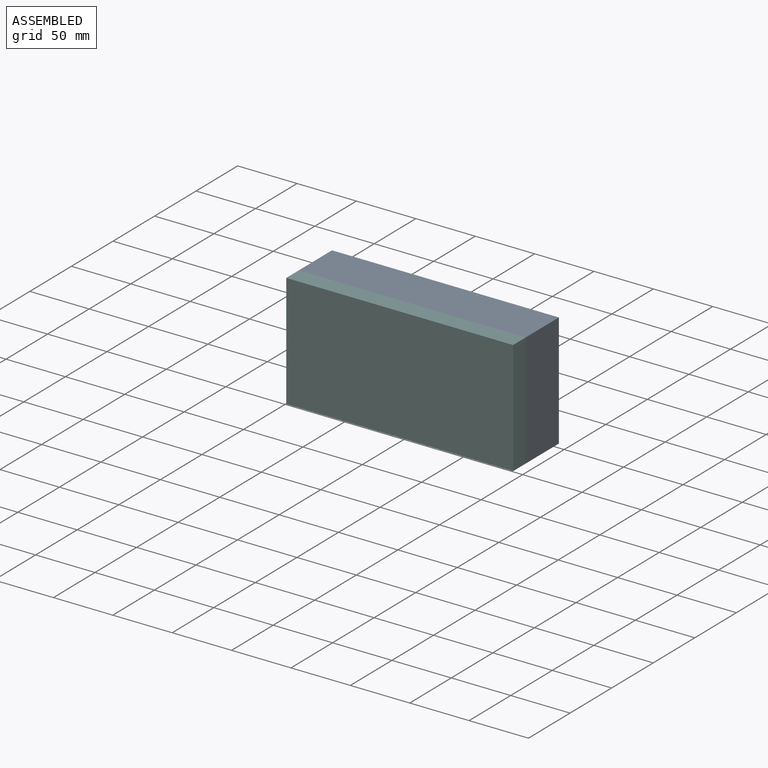
[diagram: assembled view]
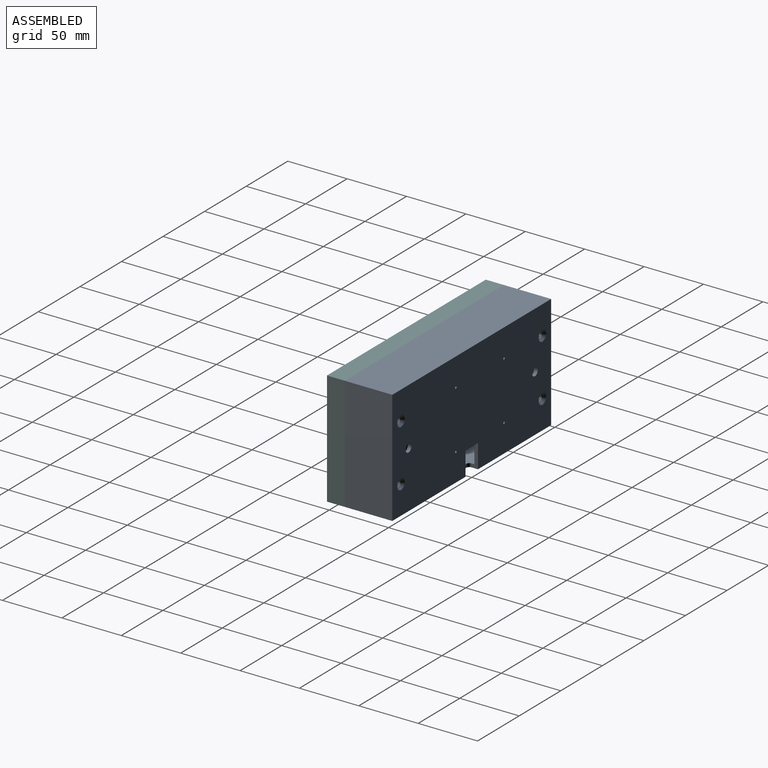
[diagram: assembled view, second angle]
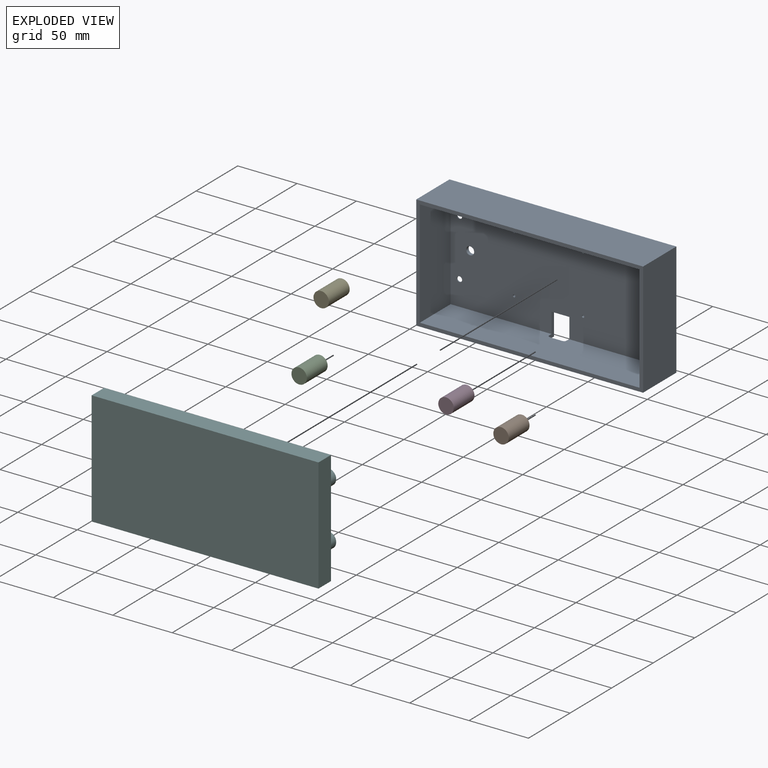
[diagram: exploded view]
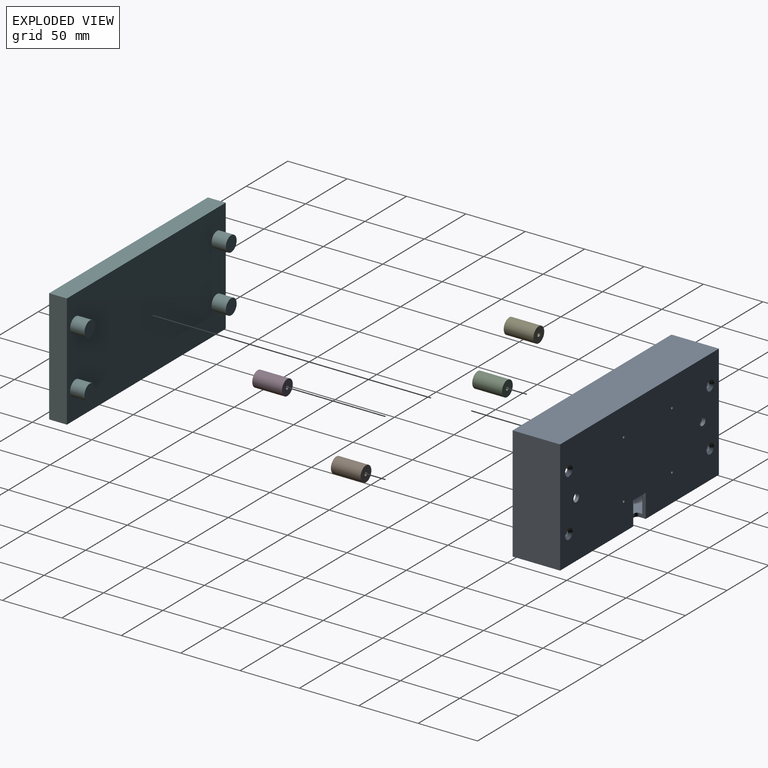
[diagram: exploded view, second angle]
ASSEMBLY  parts=6 mates=5
PART A: 31 faces, bbox 191x40x96 mm
  f0: plane 191x40mm, normal (0,0,-1), area 7522.7mm2, adj f1,f5,f6,f7,f19,f20,f21,f29
  f1: plane 191x96mm, normal (0,1,0), area 17698.9mm2, adj f0,f4,f5,f6,f12,f14,f16,f18
  f2: plane 185x37mm, normal (0,0,1), area 6772.7mm2, adj f3,f7,f9,f10,f19,f20,f21,f29
  f3: plane 185x90mm, normal (0,-1,0), area 16249.3mm2, adj f2,f8,f9,f10,f11,f13,f15,f17
  f4: plane 191x40mm, normal (0,0,1), area 7640mm2, adj f1,f5,f6,f7
  f5: plane 96x40mm, normal (1,0,0), area 3840mm2, adj f0,f1,f4,f7
  f6: plane 96x40mm, normal (-1,0,0), area 3840mm2, adj f0,f1,f4,f7
  f7: plane 191x96mm, normal (0,-1,0), area 1686mm2, adj f0,f2,f4,f5,f6,f8,f9,f10
  f8: plane 185x37mm, normal (0,0,-1), area 6845mm2, adj f3,f7,f9,f10
  f9: plane 90x37mm, normal (1,0,0), area 3330mm2, adj f2,f3,f7,f8
  f10: plane 90x37mm, normal (-1,0,0), area 3330mm2, adj f2,f3,f7,f8
  f11: cylinder r=2.2mm len=4.4mm, axis (0,1,0), area 10mm2, adj f3,f12
  f12: cone r=2.2mm half-angle=45deg, axis (0,1,0), area 67.7mm2, adj f1,f11
  f13: cylinder r=2.2mm len=4.4mm, axis (0,1,0), area 10mm2, adj f3,f14
  f14: cone r=2.2mm half-angle=45deg, axis (0,1,0), area 67.7mm2, adj f1,f13
  f15: cylinder r=2.2mm len=4.4mm, axis (0,1,0), area 10mm2, adj f3,f16
  f16: cone r=2.2mm half-angle=45deg, axis (0,1,0), area 67.7mm2, adj f1,f15
  f17: cylinder r=2.2mm len=4.4mm, axis (0,1,0), area 10mm2, adj f3,f18
  f18: cone r=2.2mm half-angle=45deg, axis (0,1,0), area 67.7mm2, adj f1,f17
  f19: plane 10x3mm, normal (0,1,0), area 30mm2, adj f0,f2,f29,f30
  f20: plane 20x5.5mm, normal (-1,0,0), area 67.5mm2, adj f0,f1,f2,f3,f22,f30
  f21: plane 20x5.5mm, normal (1,0,0), area 67.5mm2, adj f0,f1,f2,f3,f22,f29
  f22: plane 15x3mm, normal (0,0,-1), area 45mm2, adj f1,f3,f20,f21
  f23: cylinder r=1.03mm len=3mm, axis (0,-1,0), area 19.3mm2, adj f1,f3
  f24: cylinder r=1.03mm len=3mm, axis (0,-1,0), area 19.3mm2, adj f1,f3
  f25: cylinder r=1.03mm len=3mm, axis (0,-1,0), area 19.3mm2, adj f1,f3
  f26: cylinder r=1.03mm len=3mm, axis (0,-1,0), area 19.3mm2, adj f1,f3
  f27: cylinder r=3.38mm len=6.76mm, axis (0,1,0), area 63.7mm2, adj f1,f3
  f28: cylinder r=3.38mm len=6.76mm, axis (0,1,0), area 63.7mm2, adj f1,f3
  f29: cylinder r=2.5mm len=3mm, axis (0,0,1), area 11.8mm2, adj f0,f2,f19,f21
  f30: cylinder r=2.5mm len=3mm, axis (0,0,-1), area 11.8mm2, adj f0,f2,f19,f20
PART B: 5 faces, bbox 13x25x13 mm
  f0: plane 13x13mm, normal (0,1,0), area 124.2mm2, adj f2,f4
  f1: plane 13x13mm, normal (0,-1,0), area 132.7mm2, adj f2
  f2: cylinder r=6.5mm len=25mm, axis (0,-1,0), area 1021mm2, adj f0,f1
  f3: cone r=0mm half-angle=59deg, axis (0,1,0), area 10mm2, adj f4
  f4: cylinder r=1.65mm len=14.1mm, axis (0,1,0), area 146.2mm2, adj f0,f3
PART C: same geometry as B
PART D: same geometry as B
PART E: same geometry as B
PART F: 14 faces, bbox 191x27x96 mm
  f0: plane 96x15mm, normal (1,0,0), area 1440mm2, adj f1,f3,f4,f5
  f1: plane 191x15mm, normal (0,0,1), area 2865mm2, adj f0,f2,f4,f5
  f2: plane 96x15mm, normal (-1,0,0), area 1440mm2, adj f1,f3,f4,f5
  f3: plane 191x15mm, normal (0,0,-1), area 2865mm2, adj f0,f2,f4,f5
  f4: plane 191x96mm, normal (0,-1,0), area 18336mm2, adj f0,f1,f2,f3
  f5: plane 191x96mm, normal (0,1,0), area 17805.1mm2, adj f0,f1,f2,f3,f6,f8,f10,f12
  f6: cylinder r=6.5mm len=13mm, axis (0,-1,0), area 490.1mm2, adj f5,f7
  f7: plane 13x13mm, normal (0,1,0), area 132.7mm2, adj f6
  f8: cylinder r=6.5mm len=13mm, axis (0,-1,0), area 490.1mm2, adj f5,f9
  f9: plane 13x13mm, normal (0,1,0), area 132.7mm2, adj f8
  f10: cylinder r=6.5mm len=13mm, axis (0,-1,0), area 490.1mm2, adj f5,f11
  f11: plane 13x13mm, normal (0,1,0), area 132.7mm2, adj f10
  f12: cylinder r=6.5mm len=13mm, axis (0,-1,0), area 490.1mm2, adj f5,f13
  f13: plane 13x13mm, normal (0,1,0), area 132.7mm2, adj f12
PLACE A t=(-0.01,-40,-0.64)mm
PLACE B t=(-0.01,-40,-48.64)mm
PLACE C t=(-170.01,-40,-48.64)mm
PLACE D t=(-0.01,-40,-0.64)mm
PLACE E t=(-170.01,-40,-0.64)mm
PLACE F t=(-0.01,-40,-0.64)mm
MATE fastened B.f2 <-> A.f13  axis (0,1,0) through (84.99,-3,-24.64)mm
MATE fastened C.f2 <-> A.f15  axis (0,1,0) through (-85.01,-3,-24.64)mm
MATE fastened E.f2 <-> A.f17  axis (0,1,0) through (-85.01,-3,23.36)mm
MATE fastened E.f2 <-> F.f12  axis (0,-1,0) through (-85.01,-28,23.36)mm
MATE fastened D.f2 <-> A.f11  axis (0,1,0) through (84.99,-3,23.36)mm
